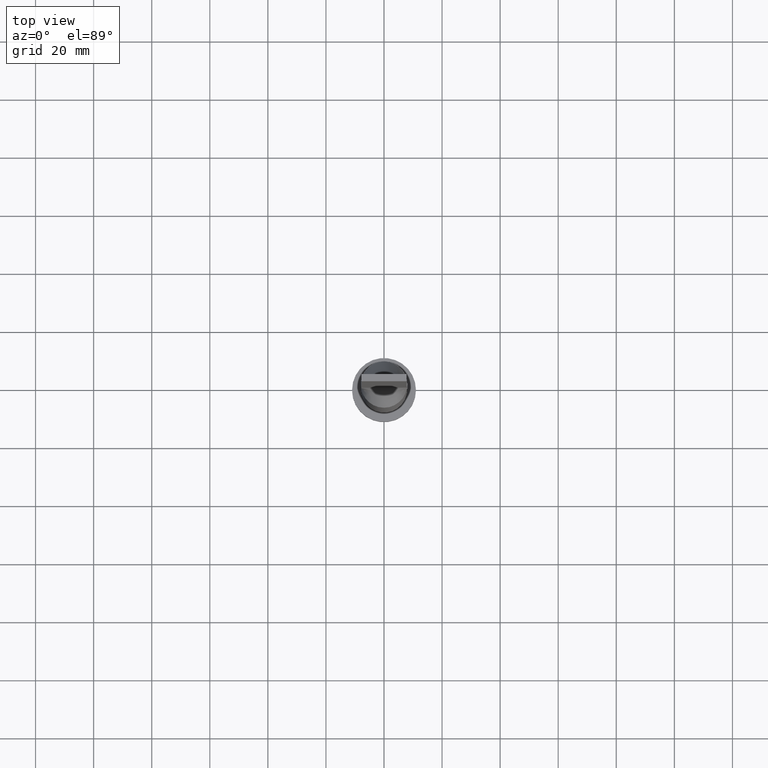
[diagram: clean part render]
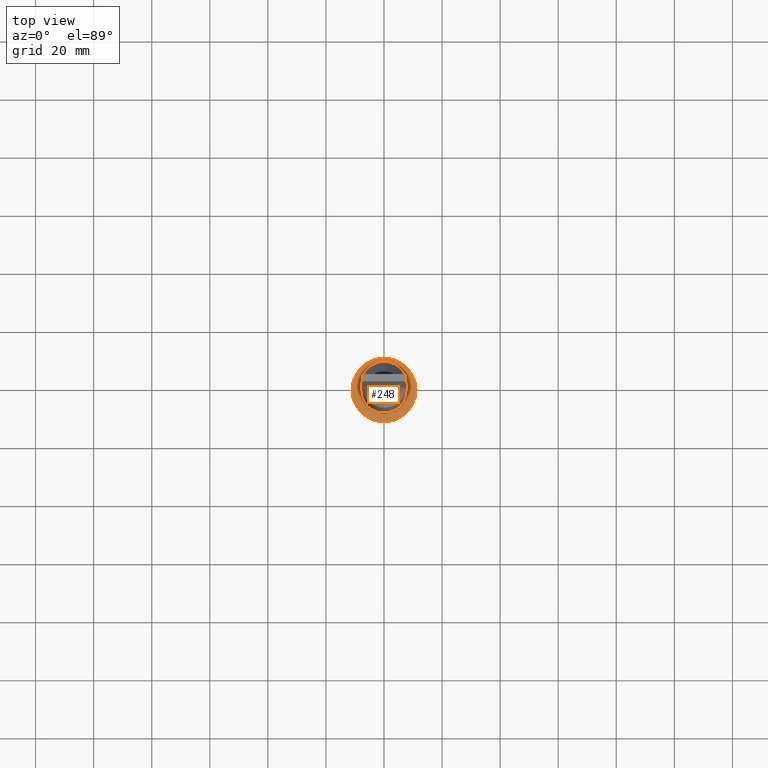
[diagram: same view with one face highlighted and labeled with its STEP entity id]
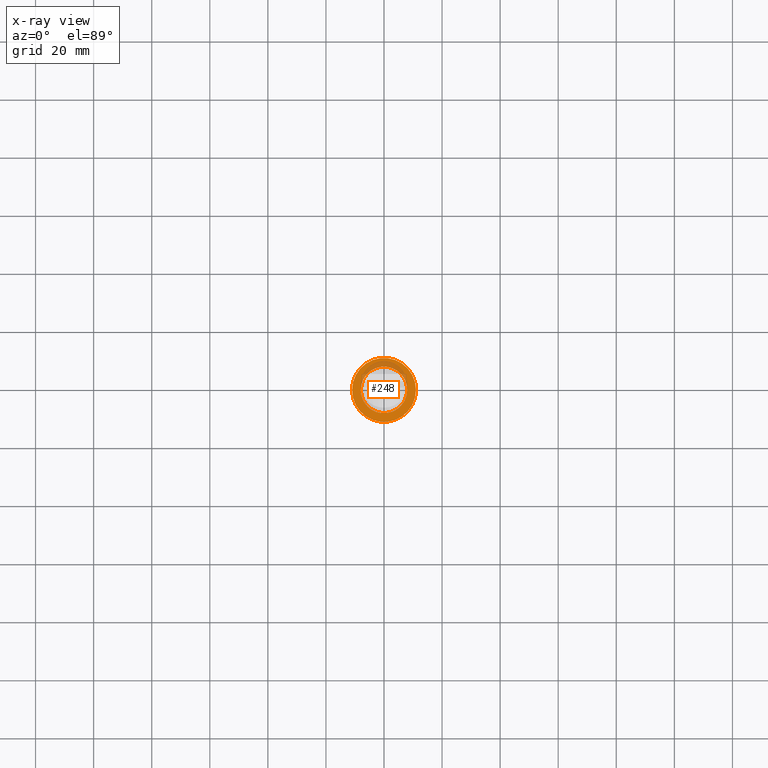
[diagram: x-ray of the same camera — body ghosted, the highlighted face saturated]
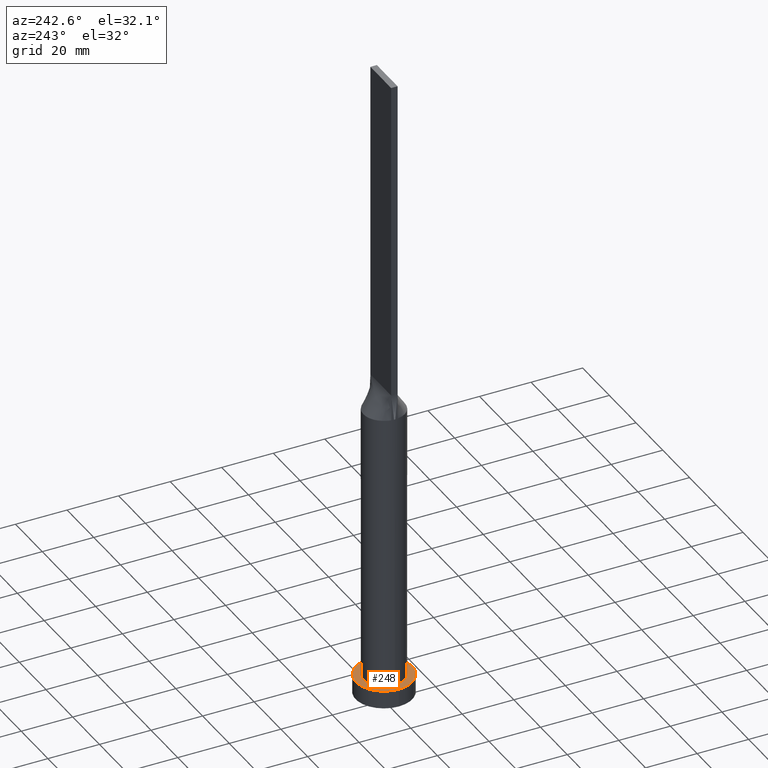
[diagram: same view with one face highlighted and labeled with its STEP entity id]
A machine part, top view. The second image highlights one B-rep face of the part: STEP entity #248.
The next image is the same camera in x-ray: the body ghosted, the highlighted face saturated — about 18% of this face is hidden behind the body in this view.
A second angle (auxiliary view) of the same face is appended — the face is thin or edge-on in the first view.
In plain terms, the highlighted planar face has unit normal (0, 0, 1).
Its self-contained STEP definition (entity closure, byte-faithful):
#38 = CARTESIAN_POINT ( 'NONE',  ( 0.000000000000000000, 0.000000000000000000, 7.000000000000000000 ) ) ;
#56 = EDGE_CURVE ( 'NONE', #150, #388, #300, .T. ) ;
#57 = CARTESIAN_POINT ( 'NONE',  ( 0.000000000000000000, 0.000000000000000000, 7.000000000000000000 ) ) ;
#63 = CIRCLE ( 'NONE', #319, 8.000000000000000000 ) ;
#70 = DIRECTION ( 'NONE',  ( 0.000000000000000000, 0.000000000000000000, 1.000000000000000000 ) ) ;
#73 = AXIS2_PLACEMENT_3D ( 'NONE', #116, #588, #157 ) ;
#75 = ORIENTED_EDGE ( 'NONE', *, *, #545, .T. ) ;
#116 = CARTESIAN_POINT ( 'NONE',  ( 0.000000000000000000, 0.000000000000000000, 7.000000000000000000 ) ) ;
#150 = VERTEX_POINT ( 'NONE', #487 ) ;
#157 = DIRECTION ( 'NONE',  ( 1.000000000000000000, 0.000000000000000000, 0.000000000000000000 ) ) ;
#162 = CARTESIAN_POINT ( 'NONE',  ( -11.00000000000000000, 0.000000000000000000, 7.000000000000000000 ) ) ;
#169 = DIRECTION ( 'NONE',  ( 1.000000000000000000, 0.000000000000000000, -0.000000000000000000 ) ) ;
#177 = DIRECTION ( 'NONE',  ( 1.000000000000000000, 0.000000000000000000, 0.000000000000000000 ) ) ;
#244 = PLANE ( 'NONE',  #398 ) ;
#248 = ADVANCED_FACE ( 'NONE', ( #349, #585 ), #244, .T. ) ;
#251 = DIRECTION ( 'NONE',  ( 0.000000000000000000, 0.000000000000000000, 1.000000000000000000 ) ) ;
#261 = DIRECTION ( 'NONE',  ( 0.000000000000000000, 0.000000000000000000, 1.000000000000000000 ) ) ;
#266 = AXIS2_PLACEMENT_3D ( 'NONE', #57, #261, #177 ) ;
#300 = CIRCLE ( 'NONE', #73, 11.00000000000000000 ) ;
#319 = AXIS2_PLACEMENT_3D ( 'NONE', #536, #251, #631 ) ;
#349 = FACE_BOUND ( 'NONE', #397, .T. ) ;
#352 = ORIENTED_EDGE ( 'NONE', *, *, #583, .F. ) ;
#388 = VERTEX_POINT ( 'NONE', #162 ) ;
#390 = EDGE_CURVE ( 'NONE', #447, #476, #470, .T. ) ;
#397 = EDGE_LOOP ( 'NONE', ( #352, #452 ) ) ;
#398 = AXIS2_PLACEMENT_3D ( 'NONE', #625, #70, #169 ) ;
#443 = DIRECTION ( 'NONE',  ( 0.000000000000000000, 0.000000000000000000, 1.000000000000000000 ) ) ;
#447 = VERTEX_POINT ( 'NONE', #564 ) ;
#452 = ORIENTED_EDGE ( 'NONE', *, *, #390, .F. ) ;
#470 = CIRCLE ( 'NONE', #266, 8.000000000000000000 ) ;
#476 = VERTEX_POINT ( 'NONE', #615 ) ;
#485 = ORIENTED_EDGE ( 'NONE', *, *, #56, .T. ) ;
#487 = CARTESIAN_POINT ( 'NONE',  ( 11.00000000000000000, 1.347111479062088405E-15, 7.000000000000000000 ) ) ;
#500 = AXIS2_PLACEMENT_3D ( 'NONE', #38, #443, #623 ) ;
#522 = EDGE_LOOP ( 'NONE', ( #75, #485 ) ) ;
#536 = CARTESIAN_POINT ( 'NONE',  ( 0.000000000000000000, 0.000000000000000000, 7.000000000000000000 ) ) ;
#543 = CIRCLE ( 'NONE', #500, 11.00000000000000000 ) ;
#545 = EDGE_CURVE ( 'NONE', #388, #150, #543, .T. ) ;
#564 = CARTESIAN_POINT ( 'NONE',  ( 8.000000000000000000, 9.797174393178825657E-16, 7.000000000000000000 ) ) ;
#583 = EDGE_CURVE ( 'NONE', #476, #447, #63, .T. ) ;
#585 = FACE_OUTER_BOUND ( 'NONE', #522, .T. ) ;
#588 = DIRECTION ( 'NONE',  ( 0.000000000000000000, 0.000000000000000000, 1.000000000000000000 ) ) ;
#615 = CARTESIAN_POINT ( 'NONE',  ( -8.000000000000000000, 0.000000000000000000, 7.000000000000000000 ) ) ;
#623 = DIRECTION ( 'NONE',  ( 1.000000000000000000, 0.000000000000000000, 0.000000000000000000 ) ) ;
#625 = CARTESIAN_POINT ( 'NONE',  ( 0.000000000000000000, 0.000000000000000000, 7.000000000000000000 ) ) ;
#631 = DIRECTION ( 'NONE',  ( 1.000000000000000000, 0.000000000000000000, 0.000000000000000000 ) ) ;